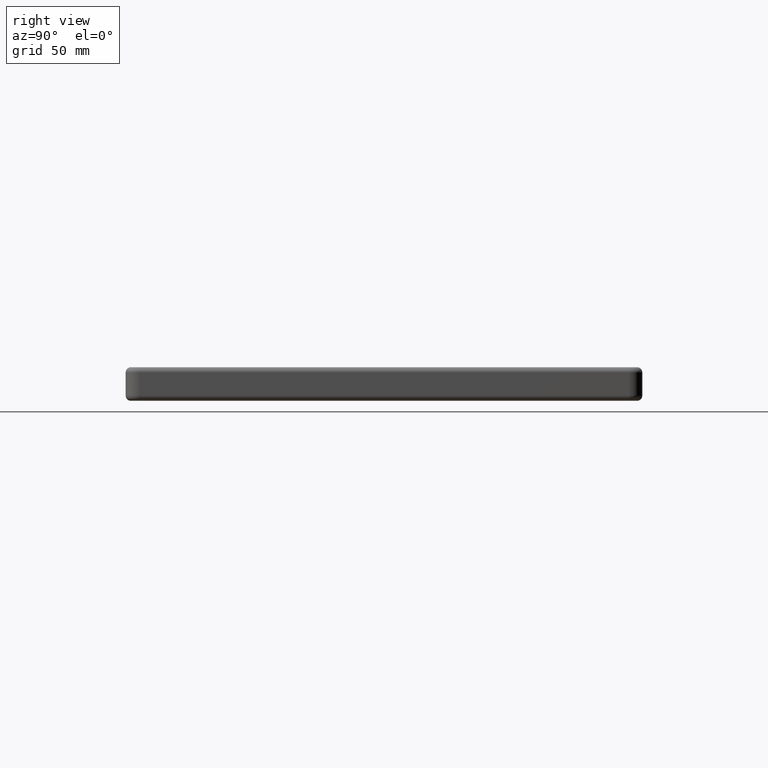
[diagram: clean part render]
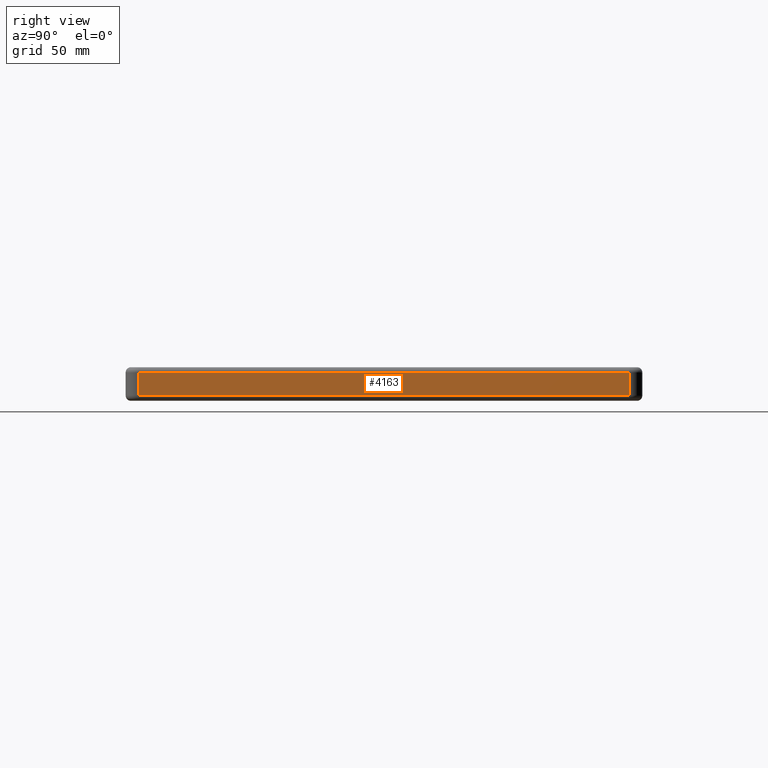
[diagram: same view with one face highlighted and labeled with its STEP entity id]
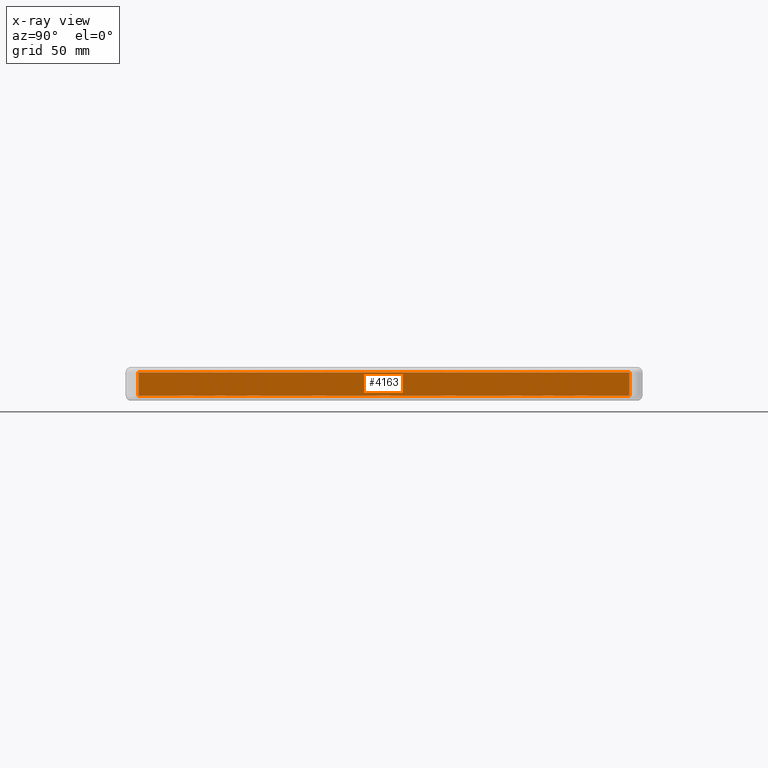
[diagram: x-ray of the same camera — body ghosted, the highlighted face saturated]
A machine part, right view. The second image highlights one B-rep face of the part: STEP entity #4163.
The next image is the same camera in x-ray: the body ghosted, the highlighted face saturated — about 0% of this face is hidden behind the body in this view.
In plain terms, the highlighted planar face has unit normal (1, 0, -0).
Its self-contained STEP definition (entity closure, byte-faithful):
#257 = LINE ( 'NONE', #284, #2224 ) ;
#284 = CARTESIAN_POINT ( 'NONE',  ( 100.0000000000000100, -95.00000000000001400, -13.00000000000000000 ) ) ;
#369 = FACE_OUTER_BOUND ( 'NONE', #1595, .T. ) ;
#419 = VERTEX_POINT ( 'NONE', #3796 ) ;
#455 = PLANE ( 'NONE',  #856 ) ;
#487 = VERTEX_POINT ( 'NONE', #3433 ) ;
#726 = DIRECTION ( 'NONE',  ( 0.0000000000000000000, 0.0000000000000000000, 1.000000000000000000 ) ) ;
#732 = EDGE_CURVE ( 'NONE', #419, #487, #3001, .T. ) ;
#856 = AXIS2_PLACEMENT_3D ( 'NONE', #1630, #2830, #1188 ) ;
#962 = CARTESIAN_POINT ( 'NONE',  ( 100.0000000000000100, -95.00000000000001400, -11.00000000000000000 ) ) ;
#1188 = DIRECTION ( 'NONE',  ( -7.304098846218138100E-017, 1.000000000000000000, 0.0000000000000000000 ) ) ;
#1276 = DIRECTION ( 'NONE',  ( 0.0000000000000000000, 0.0000000000000000000, 1.000000000000000000 ) ) ;
#1595 = EDGE_LOOP ( 'NONE', ( #3024, #4347, #5095, #3607 ) ) ;
#1630 = CARTESIAN_POINT ( 'NONE',  ( 100.0000000000000000, 94.99999999999992900, -13.00000000000000000 ) ) ;
#1822 = CARTESIAN_POINT ( 'NONE',  ( 100.0000000000000100, -95.00000000000001400, -2.000000000000000000 ) ) ;
#1867 = LINE ( 'NONE', #2527, #3750 ) ;
#2068 = CARTESIAN_POINT ( 'NONE',  ( 100.0000000000000000, 94.99999999999992900, -13.00000000000000000 ) ) ;
#2224 = VECTOR ( 'NONE', #726, 1000.000000000000000 ) ;
#2521 = LINE ( 'NONE', #1822, #4665 ) ;
#2527 = CARTESIAN_POINT ( 'NONE',  ( 100.0000000000000000, 94.99999999999992900, -11.00000000000000000 ) ) ;
#2779 = VERTEX_POINT ( 'NONE', #962 ) ;
#2830 = DIRECTION ( 'NONE',  ( 1.000000000000000000, 7.304098846218138100E-017, -0.0000000000000000000 ) ) ;
#3001 = LINE ( 'NONE', #2068, #5018 ) ;
#3024 = ORIENTED_EDGE ( 'NONE', *, *, #3502, .F. ) ;
#3358 = EDGE_CURVE ( 'NONE', #487, #4885, #2521, .T. ) ;
#3433 = CARTESIAN_POINT ( 'NONE',  ( 100.0000000000000000, 94.99999999999992900, -2.000000000000003600 ) ) ;
#3475 = DIRECTION ( 'NONE',  ( 7.304098846218138100E-017, -1.000000000000000000, -0.0000000000000000000 ) ) ;
#3502 = EDGE_CURVE ( 'NONE', #2779, #4885, #257, .T. ) ;
#3607 = ORIENTED_EDGE ( 'NONE', *, *, #3358, .T. ) ;
#3640 = CARTESIAN_POINT ( 'NONE',  ( 100.0000000000000100, -95.00000000000001400, -2.000000000000001800 ) ) ;
#3695 = DIRECTION ( 'NONE',  ( -7.304098846218138100E-017, 1.000000000000000000, 0.0000000000000000000 ) ) ;
#3750 = VECTOR ( 'NONE', #3695, 1000.000000000000000 ) ;
#3796 = CARTESIAN_POINT ( 'NONE',  ( 100.0000000000000000, 94.99999999999992900, -11.00000000000000000 ) ) ;
#4163 = ADVANCED_FACE ( 'NONE', ( #369 ), #455, .T. ) ;
#4347 = ORIENTED_EDGE ( 'NONE', *, *, #4399, .T. ) ;
#4399 = EDGE_CURVE ( 'NONE', #2779, #419, #1867, .T. ) ;
#4665 = VECTOR ( 'NONE', #3475, 1000.000000000000000 ) ;
#4885 = VERTEX_POINT ( 'NONE', #3640 ) ;
#5018 = VECTOR ( 'NONE', #1276, 1000.000000000000000 ) ;
#5095 = ORIENTED_EDGE ( 'NONE', *, *, #732, .T. ) ;